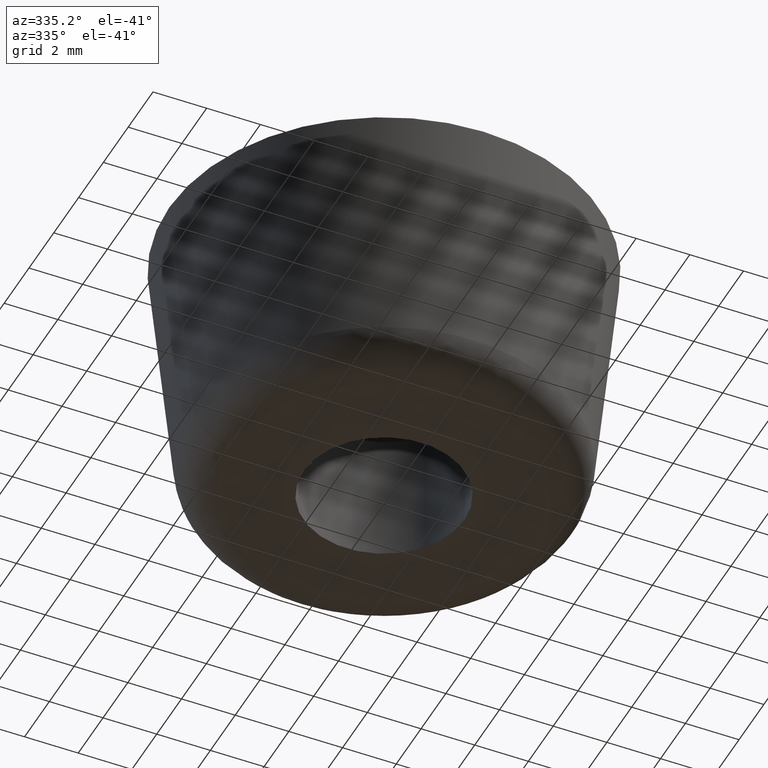
[diagram: clean part render]
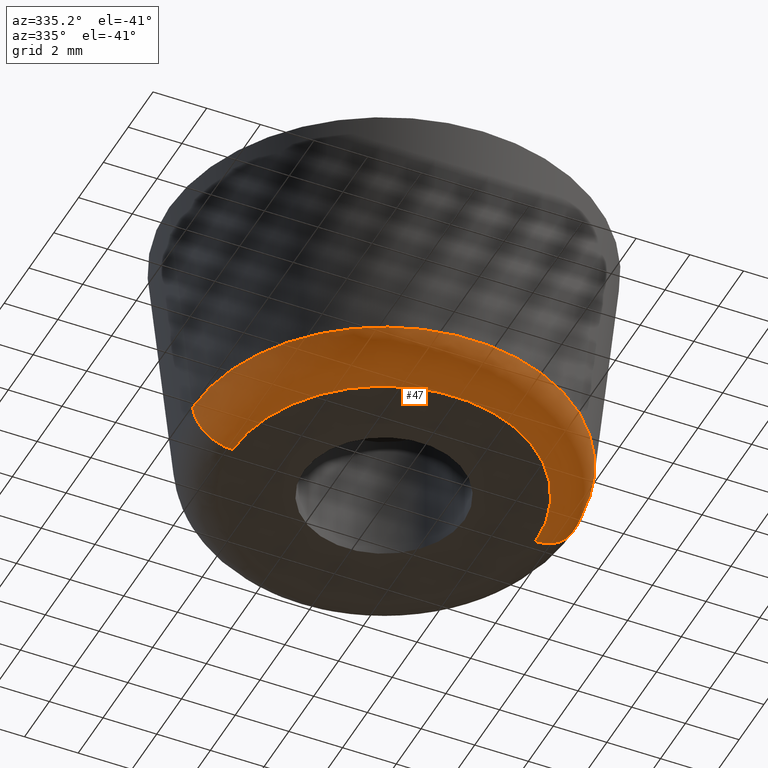
[diagram: same view with one face highlighted and labeled with its STEP entity id]
A machine part, auxiliary view. The second image highlights one B-rep face of the part: STEP entity #47.
In plain terms, the highlighted face is a freeform B-spline surface patch.
Its self-contained STEP definition (entity closure, byte-faithful):
#47=ADVANCED_FACE('',(#125),#124,.T.);
#124=( BOUNDED_SURFACE() B_SPLINE_SURFACE( 2,2,((#202,#203,#204,#205,#206),(#207,#208,#209,#210,#211),(#212,#213,#214,#215,#216),(#217,#218,#219,#220,#221),(#222,#223,#224,#225,#226)), .UNSPECIFIED.,.F.,.F.,.F.) B_SPLINE_SURFACE_WITH_KNOTS((3,2,3),(3,2,3),(0.00000000000E+00,5.00000000000E-01,1.00000000000E+00),(0.00000000000E+00,5.00000000000E-01,1.00000000000E+00), .UNSPECIFIED. ) GEOMETRIC_REPRESENTATION_ITEM() RATIONAL_B_SPLINE_SURFACE(((1.00000000000E+00,7.41452533552E-01,1.00000000000E+00,7.41452533552E-01,1.00000000000E+00),(7.07106781187E-01,5.24286114402E-01,7.07106781187E-01,5.24286114402E-01,7.07106781187E-01),(1.00000000000E+00,7.41452533552E-01,1.00000000000E+00,7.41452533552E-01,1.00000000000E+00),(7.07106781187E-01,5.24286114402E-01,7.07106781187E-01,5.24286114402E-01,7.07106781187E-01),(1.00000000000E+00,7.41452533552E-01,1.00000000000E+00,7.41452533552E-01,1.00000000000E+00))) REPRESENTATION_ITEM('') SURFACE() );
#125=FACE_OUTER_BOUND('',#227,.T.);
#202=CARTESIAN_POINT('',(7.13507444215E+00,-8.73765749685E-16,-8.64925557853E+00));
#203=CARTESIAN_POINT('',(7.00000000000E+00,-8.57224447676E-16,-1.00000000000E+01));
#204=CARTESIAN_POINT('',(5.64251865683E+00,-6.90986419872E-16,-1.00000000000E+01));
#205=CARTESIAN_POINT('',(4.28503731366E+00,-5.24748392068E-16,-1.00000000000E+01));
#206=CARTESIAN_POINT('',(4.14996287152E+00,-5.08207090059E-16,-8.64925557853E+00));
#207=CARTESIAN_POINT('',(7.13507444215E+00,-7.13507444215E+00,-8.64925557853E+00));
#208=CARTESIAN_POINT('',(7.00000000000E+00,-7.00000000000E+00,-1.00000000000E+01));
#209=CARTESIAN_POINT('',(5.64251865683E+00,-5.64251865683E+00,-1.00000000000E+01));
#210=CARTESIAN_POINT('',(4.28503731366E+00,-4.28503731366E+00,-1.00000000000E+01));
#211=CARTESIAN_POINT('',(4.14996287152E+00,-4.14996287152E+00,-8.64925557853E+00));
#212=CARTESIAN_POINT('',(1.34409193620E-14,-7.13507444215E+00,-8.64925557853E+00));
#213=CARTESIAN_POINT('',(1.34491897398E-14,-7.00000000000E+00,-1.00000000000E+01));
#214=CARTESIAN_POINT('',(1.35323060086E-14,-5.64251865683E+00,-1.00000000000E+01));
#215=CARTESIAN_POINT('',(1.36154222773E-14,-4.28503731366E+00,-1.00000000000E+01));
#216=CARTESIAN_POINT('',(1.36236926551E-14,-4.14996287152E+00,-8.64925557853E+00));
#217=CARTESIAN_POINT('',(-7.13507444215E+00,-7.13507444215E+00,-8.64925557853E+00));
#218=CARTESIAN_POINT('',(-7.00000000000E+00,-7.00000000000E+00,-1.00000000000E+01));
#219=CARTESIAN_POINT('',(-5.64251865683E+00,-5.64251865683E+00,-1.00000000000E+01));
#220=CARTESIAN_POINT('',(-4.28503731366E+00,-4.28503731366E+00,-1.00000000000E+01));
#221=CARTESIAN_POINT('',(-4.14996287152E+00,-4.14996287152E+00,-8.64925557853E+00));
#222=CARTESIAN_POINT('',(-7.13507444215E+00,-2.88580404541E-20,-8.64925557853E+00));
#223=CARTESIAN_POINT('',(-7.00000000000E+00,-2.83117274832E-20,-1.00000000000E+01));
#224=CARTESIAN_POINT('',(-5.64251865683E+00,-2.28213500758E-20,-1.00000000000E+01));
#225=CARTESIAN_POINT('',(-4.28503731366E+00,-1.73309726687E-20,-1.00000000000E+01));
#226=CARTESIAN_POINT('',(-4.14996287152E+00,-1.67846596976E-20,-8.64925557853E+00));
#227=EDGE_LOOP('',(#304,#305,#306,#307));
#304=ORIENTED_EDGE('',*,*,#325,.F.);
#305=ORIENTED_EDGE('',*,*,#336,.F.);
#306=ORIENTED_EDGE('',*,*,#337,.T.);
#307=ORIENTED_EDGE('',*,*,#338,.T.);
#325=EDGE_CURVE('',#371,#370,#378,.T.);
#336=EDGE_CURVE('',#450,#371,#451,.T.);
#337=EDGE_CURVE('',#450,#457,#458,.T.);
#338=EDGE_CURVE('',#457,#370,#464,.T.);
#370=VERTEX_POINT('',#508);
#371=VERTEX_POINT('',#509);
#378=CIRCLE('',#517,5.64251865683E+00);
#450=VERTEX_POINT('',#556);
#451=(BOUNDED_CURVE() B_SPLINE_CURVE(2,(#557,#558,#559),.UNSPECIFIED.,.F.,.F.) B_SPLINE_CURVE_WITH_KNOTS((3,3),(0.00000000000E+00,5.00000000000E-01),.UNSPECIFIED.) CURVE() GEOMETRIC_REPRESENTATION_ITEM() RATIONAL_B_SPLINE_CURVE((1.00000000000E+00,7.41452533552E-01,1.00000000000E+00)) REPRESENTATION_ITEM('') );
#457=VERTEX_POINT('',#560);
#458=CIRCLE('',#564,7.13507444215E+00);
#464=(BOUNDED_CURVE() B_SPLINE_CURVE(3,(#565,#566,#567,#568,#569),.UNSPECIFIED.,.F.,.F.) B_SPLINE_CURVE_WITH_KNOTS((4,1,4),(0.00000000000E+00,2.50000003657E-01,5.00000006454E-01),.UNSPECIFIED.) CURVE() GEOMETRIC_REPRESENTATION_ITEM() RATIONAL_B_SPLINE_CURVE((1.00000000000E+00,1.00000000000E+00,1.00000000000E+00,1.00000000000E+00,1.00000000000E+00)) REPRESENTATION_ITEM('') );
#508=CARTESIAN_POINT('',(-5.64251865683E+00,0.00000000000E+00,-1.00000000000E+01));
#509=CARTESIAN_POINT('',(5.64251865683E+00,2.96059473233E-16,-1.00000000000E+01));
#514=CARTESIAN_POINT('',(1.42108547152E-14,0.00000000000E+00,-1.00000000000E+01));
#515=DIRECTION('',(-0.00000000000E+00,0.00000000000E+00,-1.00000000000E+00));
#516=DIRECTION('',(-1.00000000000E+00,-1.22460635382E-16,0.00000000000E+00));
#517=AXIS2_PLACEMENT_3D('',#514,#515,#516);
#556=CARTESIAN_POINT('',(7.13507444215E+00,2.96059473233E-16,-8.64925557853E+00));
#557=CARTESIAN_POINT('',(7.13507444215E+00,-8.73765749685E-16,-8.64925557853E+00));
#558=CARTESIAN_POINT('',(7.00000000000E+00,-8.57224447676E-16,-1.00000000000E+01));
#559=CARTESIAN_POINT('',(5.64251865683E+00,-6.90986419872E-16,-1.00000000000E+01));
#560=CARTESIAN_POINT('',(-7.13507444215E+00,0.00000000000E+00,-8.64925557853E+00));
#561=CARTESIAN_POINT('',(1.42108547152E-14,0.00000000000E+00,-8.64925557853E+00));
#562=DIRECTION('',(-0.00000000000E+00,0.00000000000E+00,-1.00000000000E+00));
#563=DIRECTION('',(-1.00000000000E+00,-1.22460635382E-16,0.00000000000E+00));
#564=AXIS2_PLACEMENT_3D('',#561,#562,#563);
#565=CARTESIAN_POINT('',(-7.13507444215E+00,5.92118946467E-16,-8.64925557853E+00));
#566=CARTESIAN_POINT('',(-7.10131412581E+00,7.56180789292E-16,-9.01252578852E+00));
#567=CARTESIAN_POINT('',(-6.74372355499E+00,9.43891241730E-16,-9.71681773829E+00));
#568=CARTESIAN_POINT('',(-6.00734527561E+00,7.56180774006E-16,-1.00025539729E+01));
#569=CARTESIAN_POINT('',(-5.64251863085E+00,5.92118946597E-16,-1.00000000000E+01));